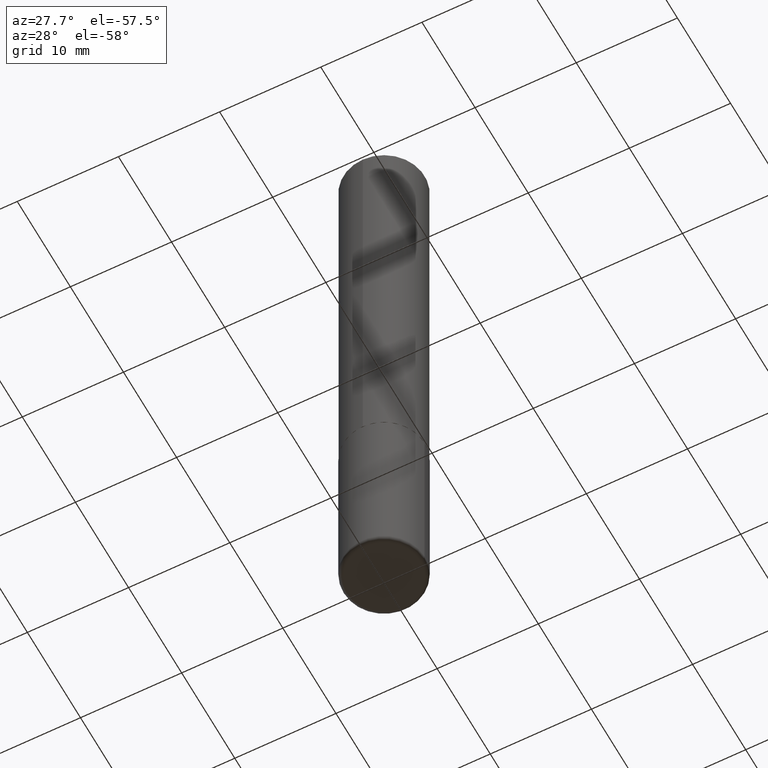
[diagram: clean part render]
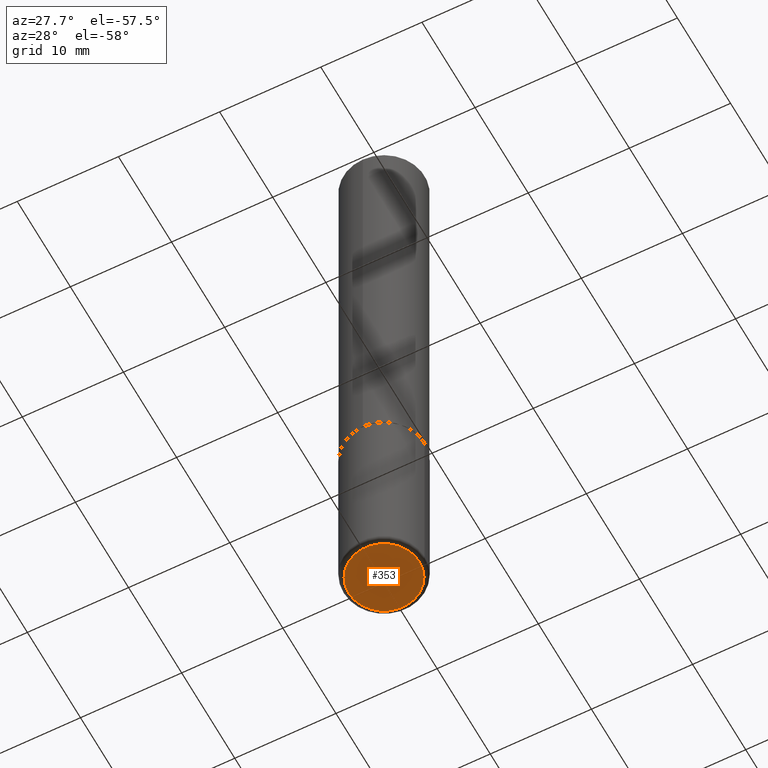
[diagram: same view with one face highlighted and labeled with its STEP entity id]
A machine part, auxiliary view. The second image highlights one B-rep face of the part: STEP entity #353.
In plain terms, the highlighted planar face has unit normal (0, -0, -1).
Its self-contained STEP definition (entity closure, byte-faithful):
#2 = DIRECTION ( 'NONE',  ( 1.000000000000000000, -6.982962677686265922E-15, 0.000000000000000000 ) ) ;
#8 = DIRECTION ( 'NONE',  ( 1.000000000000000000, -6.982962677686265922E-15, 0.000000000000000000 ) ) ;
#18 = EDGE_CURVE ( 'NONE', #67, #174, #96, .T. ) ;
#60 = CIRCLE ( 'NONE', #237, 0.1378000000000000058 ) ;
#67 = VERTEX_POINT ( 'NONE', #143 ) ;
#76 = ORIENTED_EDGE ( 'NONE', *, *, #407, .F. ) ;
#86 = PLANE ( 'NONE',  #188 ) ;
#96 = CIRCLE ( 'NONE', #153, 0.1378000000000000058 ) ;
#143 = CARTESIAN_POINT ( 'NONE',  ( 0.1378000000000000058, -9.622173421717822812E-15, -2.480300000000000171 ) ) ;
#153 = AXIS2_PLACEMENT_3D ( 'NONE', #361, #388, #8 ) ;
#174 = VERTEX_POINT ( 'NONE', #398 ) ;
#188 = AXIS2_PLACEMENT_3D ( 'NONE', #406, #376, #339 ) ;
#196 = CARTESIAN_POINT ( 'NONE',  ( 6.065496279980994755E-29, -8.659921164732655335E-15, -2.480300000000000171 ) ) ;
#197 = ORIENTED_EDGE ( 'NONE', *, *, #18, .F. ) ;
#201 = DIRECTION ( 'NONE',  ( -2.445468806185136597E-29, 3.491481338843145583E-15, 1.000000000000000000 ) ) ;
#237 = AXIS2_PLACEMENT_3D ( 'NONE', #196, #201, #2 ) ;
#251 = FACE_OUTER_BOUND ( 'NONE', #324, .T. ) ;
#324 = EDGE_LOOP ( 'NONE', ( #197, #76 ) ) ;
#339 = DIRECTION ( 'NONE',  ( -1.000000000000000000, 6.982962677686265922E-15, -4.876176775795935793E-29 ) ) ;
#353 = ADVANCED_FACE ( 'NONE', ( #251 ), #86, .T. ) ;
#361 = CARTESIAN_POINT ( 'NONE',  ( 6.065496279980994755E-29, -8.659921164732655335E-15, -2.480300000000000171 ) ) ;
#376 = DIRECTION ( 'NONE',  ( 2.438088387897960049E-29, -3.491481338843145188E-15, -1.000000000000000000 ) ) ;
#388 = DIRECTION ( 'NONE',  ( -2.445468806185136597E-29, 3.491481338843145583E-15, 1.000000000000000000 ) ) ;
#398 = CARTESIAN_POINT ( 'NONE',  ( -0.1378000000000000058, -7.576413724195261400E-15, -2.480300000000000171 ) ) ;
#406 = CARTESIAN_POINT ( 'NONE',  ( 6.065496279980994755E-29, -8.659921164732655335E-15, -2.480300000000000171 ) ) ;
#407 = EDGE_CURVE ( 'NONE', #174, #67, #60, .T. ) ;